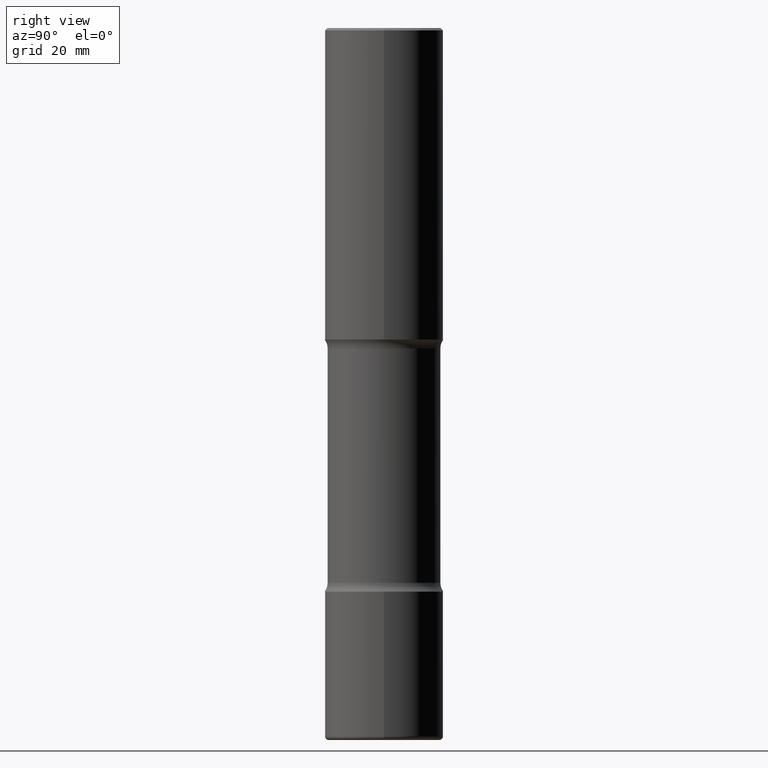
[diagram: clean part render]
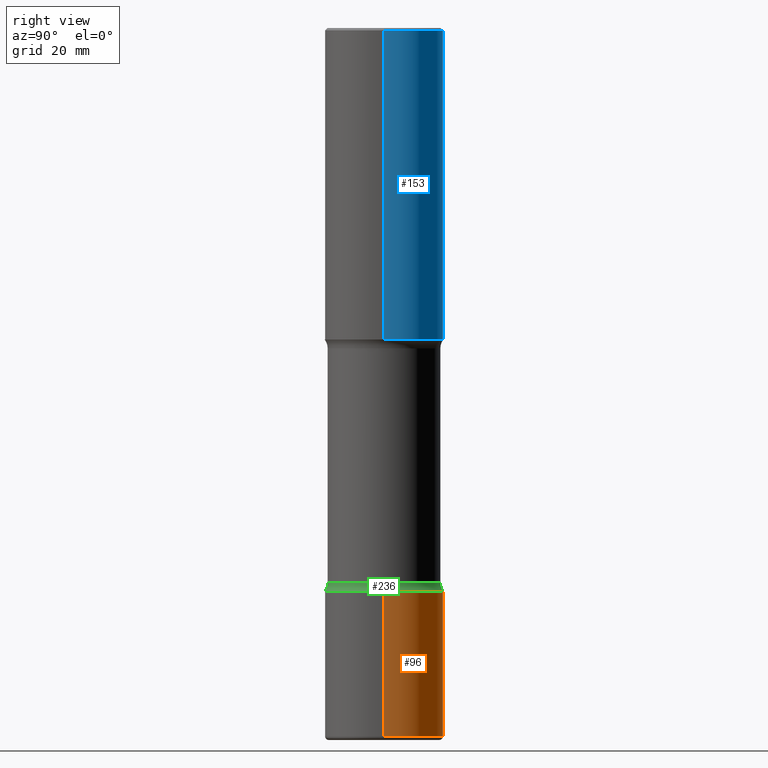
[diagram: same view with three faces highlighted in distinct colors, each labeled with its STEP entity id]
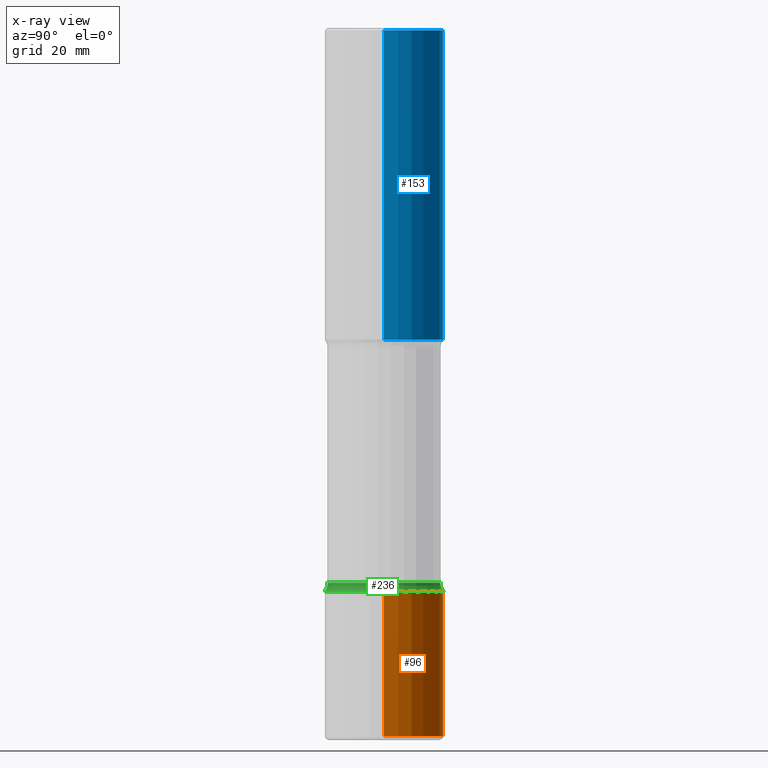
[diagram: x-ray of the same camera — body ghosted, the three highlighted faces saturated]
A machine part, right view with three faces highlighted in distinct colors.
The next image is the same camera in x-ray (body ghosted, the three faces saturated) — at least one of them is partly hidden behind the body in this view.
Their STEP definitions:

[orange] entity #96 — the highlighted cylindrical surface (partial cylindrical patch) has radius 12.7 mm, axis along (-0, 0, 1).
#14 = VERTEX_POINT ( 'NONE', #60 ) ;
#19 = EDGE_LOOP ( 'NONE', ( #72, #482, #411, #328 ) ) ;
#27 = CARTESIAN_POINT ( 'NONE',  ( 0.5000000000000002220, -2.007601769834807990E-14, -4.750000000000000888 ) ) ;
#60 = CARTESIAN_POINT ( 'NONE',  ( 0.5000000000000001110, -2.433562493173671900E-14, -5.970000000000000639 ) ) ;
#72 = ORIENTED_EDGE ( 'NONE', *, *, #311, .T. ) ;
#79 = VECTOR ( 'NONE', #301, 39.37007874015748143 ) ;
#80 = CARTESIAN_POINT ( 'NONE',  ( -0.5000000000000004441, 3.552713678800504085E-15, -2.459467545127455133E-29 ) ) ;
#95 = DIRECTION ( 'NONE',  ( 1.000000000000000000, -6.982962677686270655E-15, 0.000000000000000000 ) ) ;
#96 = ADVANCED_FACE ( 'NONE', ( #198 ), #229, .T. ) ;
#111 = VERTEX_POINT ( 'NONE', #27 ) ;
#116 = EDGE_CURVE ( 'NONE', #147, #441, #497, .T. ) ;
#135 = DIRECTION ( 'NONE',  ( -2.445468806185136597E-29, 3.491481338843145583E-15, 1.000000000000000000 ) ) ;
#147 = VERTEX_POINT ( 'NONE', #536 ) ;
#155 = CARTESIAN_POINT ( 'NONE',  ( -0.5000000000000002220, -1.516162629739875886E-14, -4.750000000000000888 ) ) ;
#178 = DIRECTION ( 'NONE',  ( 1.000000000000000000, -6.982962677686266711E-15, 4.876176775795935232E-29 ) ) ;
#198 = FACE_OUTER_BOUND ( 'NONE', #19, .T. ) ;
#217 = CARTESIAN_POINT ( 'NONE',  ( 0.000000000000000000, 0.000000000000000000, 0.000000000000000000 ) ) ;
#223 = CARTESIAN_POINT ( 'NONE',  ( 1.161597682937940108E-28, -1.658453635950494339E-14, -4.750000000000000888 ) ) ;
#227 = DIRECTION ( 'NONE',  ( -2.445468806185136597E-29, 3.491481338843145583E-15, 1.000000000000000000 ) ) ;
#229 = CYLINDRICAL_SURFACE ( 'NONE', #405, 0.5000000000000004441 ) ;
#244 = EDGE_CURVE ( 'NONE', #14, #111, #384, .T. ) ;
#301 = DIRECTION ( 'NONE',  ( -2.445468806185136877E-29, 3.491481338843145188E-15, 1.000000000000000000 ) ) ;
#309 = CARTESIAN_POINT ( 'NONE',  ( 1.459944877292526719E-28, -2.084414359289358249E-14, -5.970000000000000639 ) ) ;
#311 = EDGE_CURVE ( 'NONE', #14, #147, #500, .T. ) ;
#328 = ORIENTED_EDGE ( 'NONE', *, *, #244, .F. ) ;
#332 = AXIS2_PLACEMENT_3D ( 'NONE', #309, #227, #95 ) ;
#346 = DIRECTION ( 'NONE',  ( 1.000000000000000000, -6.982962677686267499E-15, 0.000000000000000000 ) ) ;
#347 = CIRCLE ( 'NONE', #449, 0.5000000000000002220 ) ;
#350 = DIRECTION ( 'NONE',  ( -2.445468806185136877E-29, 3.491481338843145188E-15, 1.000000000000000000 ) ) ;
#351 = EDGE_CURVE ( 'NONE', #111, #441, #347, .T. ) ;
#384 = LINE ( 'NONE', #385, #511 ) ;
#385 = CARTESIAN_POINT ( 'NONE',  ( 0.5000000000000004441, -3.491481338843136511E-15, 2.438088387897969858E-29 ) ) ;
#405 = AXIS2_PLACEMENT_3D ( 'NONE', #217, #460, #178 ) ;
#411 = ORIENTED_EDGE ( 'NONE', *, *, #351, .F. ) ;
#441 = VERTEX_POINT ( 'NONE', #155 ) ;
#449 = AXIS2_PLACEMENT_3D ( 'NONE', #223, #135, #346 ) ;
#460 = DIRECTION ( 'NONE',  ( -2.445468806185136597E-29, 3.491481338843145583E-15, 1.000000000000000000 ) ) ;
#482 = ORIENTED_EDGE ( 'NONE', *, *, #116, .T. ) ;
#497 = LINE ( 'NONE', #80, #79 ) ;
#500 = CIRCLE ( 'NONE', #332, 0.5000000000000005551 ) ;
#511 = VECTOR ( 'NONE', #350, 39.37007874015748143 ) ;
#536 = CARTESIAN_POINT ( 'NONE',  ( -0.5000000000000001110, -1.729142991409308156E-14, -5.970000000000000639 ) ) ;

[blue] entity #153 — the highlighted cylindrical surface (partial cylindrical patch) has radius 12.7 mm, axis along (-0, 0, 1).
#20 = DIRECTION ( 'NONE',  ( -2.445468806185136877E-29, 3.491481338843145188E-15, 1.000000000000000000 ) ) ;
#48 = CIRCLE ( 'NONE', #322, 0.5000000000000004441 ) ;
#81 = CIRCLE ( 'NONE', #406, 0.5000000000000000000 ) ;
#99 = EDGE_LOOP ( 'NONE', ( #107, #169, #358, #334 ) ) ;
#105 = CARTESIAN_POINT ( 'NONE',  ( -0.5000000000000000000, 3.421651712066270057E-15, -0.02000000000000010103 ) ) ;
#107 = ORIENTED_EDGE ( 'NONE', *, *, #549, .T. ) ;
#137 = CARTESIAN_POINT ( 'NONE',  ( 0.5000000000000004441, -1.265661985330638997E-14, -2.624999999999999556 ) ) ;
#153 = ADVANCED_FACE ( 'NONE', ( #186 ), #349, .T. ) ;
#158 = VERTEX_POINT ( 'NONE', #137 ) ;
#165 = CARTESIAN_POINT ( 'NONE',  ( 4.890937612370298557E-31, -6.982962677686327354E-17, -0.02000000000000010103 ) ) ;
#169 = ORIENTED_EDGE ( 'NONE', *, *, #370, .T. ) ;
#173 = DIRECTION ( 'NONE',  ( 1.000000000000000000, -6.982962677686264344E-15, 0.000000000000000000 ) ) ;
#174 = DIRECTION ( 'NONE',  ( -2.445468806185136597E-29, 3.491481338843145583E-15, 1.000000000000000000 ) ) ;
#182 = DIRECTION ( 'NONE',  ( -2.445468806185136597E-29, 3.491481338843145583E-15, 1.000000000000000000 ) ) ;
#186 = FACE_OUTER_BOUND ( 'NONE', #99, .T. ) ;
#189 = CARTESIAN_POINT ( 'NONE',  ( 0.5000000000000002220, -3.491481338843134933E-15, 2.438088387897969017E-29 ) ) ;
#240 = VERTEX_POINT ( 'NONE', #513 ) ;
#257 = VECTOR ( 'NONE', #274, 39.37007874015748143 ) ;
#270 = LINE ( 'NONE', #327, #257 ) ;
#274 = DIRECTION ( 'NONE',  ( -2.445468806185136877E-29, 3.491481338843145188E-15, 1.000000000000000000 ) ) ;
#277 = VERTEX_POINT ( 'NONE', #467 ) ;
#322 = AXIS2_PLACEMENT_3D ( 'NONE', #373, #174, #173 ) ;
#325 = CARTESIAN_POINT ( 'NONE',  ( 0.000000000000000000, 0.000000000000000000, 0.000000000000000000 ) ) ;
#327 = CARTESIAN_POINT ( 'NONE',  ( -0.5000000000000002220, 3.552713678800502507E-15, -2.459467545127454012E-29 ) ) ;
#334 = ORIENTED_EDGE ( 'NONE', *, *, #413, .F. ) ;
#338 = VECTOR ( 'NONE', #20, 39.37007874015748143 ) ;
#344 = DIRECTION ( 'NONE',  ( 1.000000000000000000, -6.982962677686266711E-15, 4.876176775795935793E-29 ) ) ;
#349 = CYLINDRICAL_SURFACE ( 'NONE', #457, 0.5000000000000002220 ) ;
#358 = ORIENTED_EDGE ( 'NONE', *, *, #398, .F. ) ;
#370 = EDGE_CURVE ( 'NONE', #277, #403, #270, .T. ) ;
#373 = CARTESIAN_POINT ( 'NONE',  ( 6.419355616235982445E-29, -9.165138514463255034E-15, -2.624999999999999556 ) ) ;
#398 = EDGE_CURVE ( 'NONE', #240, #403, #81, .T. ) ;
#403 = VERTEX_POINT ( 'NONE', #105 ) ;
#404 = LINE ( 'NONE', #189, #338 ) ;
#406 = AXIS2_PLACEMENT_3D ( 'NONE', #165, #518, #485 ) ;
#413 = EDGE_CURVE ( 'NONE', #158, #240, #404, .T. ) ;
#457 = AXIS2_PLACEMENT_3D ( 'NONE', #325, #182, #344 ) ;
#467 = CARTESIAN_POINT ( 'NONE',  ( -0.5000000000000004441, -1.064770391819553504E-15, -2.624999999999999556 ) ) ;
#485 = DIRECTION ( 'NONE',  ( 1.000000000000000000, -6.982962677686266711E-15, 0.000000000000000000 ) ) ;
#513 = CARTESIAN_POINT ( 'NONE',  ( 0.5000000000000000000, -3.500078625662629079E-15, -0.02000000000000010103 ) ) ;
#518 = DIRECTION ( 'NONE',  ( -2.445468806185136597E-29, 3.491481338843145583E-15, 1.000000000000000000 ) ) ;
#549 = EDGE_CURVE ( 'NONE', #158, #277, #48, .T. ) ;

[green] entity #236 — the highlighted toroidal blend (fillet) surface has major radius 15.24 mm and minor (blend) radius 3.175 mm.
#54 = DIRECTION ( 'NONE',  ( 2.523594115079346016E-29, -3.379601449890201278E-15, -1.000000000000000000 ) ) ;
#63 = CARTESIAN_POINT ( 'NONE',  ( 3.316907271901089495E-15, 0.4749999999999836020, -4.675000000000001599 ) ) ;
#66 = CARTESIAN_POINT ( 'NONE',  ( 3.491481338843251684E-15, 0.4999999999999837352, -4.750000000000002665 ) ) ;
#89 = CARTESIAN_POINT ( 'NONE',  ( 1.143256666891551449E-28, -1.632267525909170681E-14, -4.674999999999999822 ) ) ;
#102 = CARTESIAN_POINT ( 'NONE',  ( 1.161597682937940108E-28, -1.658453635950494339E-14, -4.750000000000000888 ) ) ;
#136 = AXIS2_PLACEMENT_3D ( 'NONE', #247, #394, #283 ) ;
#138 = DIRECTION ( 'NONE',  ( 2.523594115079346016E-29, -3.379601449890201278E-15, -1.000000000000000000 ) ) ;
#145 = AXIS2_PLACEMENT_3D ( 'NONE', #432, #233, #396 ) ;
#184 = CARTESIAN_POINT ( 'NONE',  ( -3.344492773913506542E-15, -0.4750000000000162426, -4.674999999999998934 ) ) ;
#185 = CIRCLE ( 'NONE', #145, 0.1250000000000000278 ) ;
#187 = FACE_OUTER_BOUND ( 'NONE', #192, .T. ) ;
#192 = EDGE_LOOP ( 'NONE', ( #435, #208, #206, #246 ) ) ;
#194 = EDGE_CURVE ( 'NONE', #372, #320, #438, .T. ) ;
#202 = AXIS2_PLACEMENT_3D ( 'NONE', #102, #54, #400 ) ;
#206 = ORIENTED_EDGE ( 'NONE', *, *, #393, .T. ) ;
#208 = ORIENTED_EDGE ( 'NONE', *, *, #425, .F. ) ;
#233 = DIRECTION ( 'NONE',  ( -1.000000000000000000, 6.982962677686265922E-15, -4.883557194083112340E-29 ) ) ;
#236 = ADVANCED_FACE ( 'NONE', ( #187 ), #237, .F. ) ;
#237 = TOROIDAL_SURFACE ( 'NONE', #382, 0.5999999999999998668, 0.1250000000000000278 ) ;
#246 = ORIENTED_EDGE ( 'NONE', *, *, #504, .T. ) ;
#247 = CARTESIAN_POINT ( 'NONE',  ( 1.142670727074844742E-28, -1.633106625076317916E-14, -4.674999999999999822 ) ) ;
#264 = DIRECTION ( 'NONE',  ( 6.860497997771532351E-15, 1.000000000000000000, 0.000000000000000000 ) ) ;
#271 = DIRECTION ( 'NONE',  ( 6.982962677686265133E-15, 1.000000000000000000, -3.379601449890201672E-15 ) ) ;
#283 = DIRECTION ( 'NONE',  ( 6.982962677686265133E-15, 1.000000000000000000, -3.450755360418017133E-15 ) ) ;
#320 = VERTEX_POINT ( 'NONE', #184 ) ;
#372 = VERTEX_POINT ( 'NONE', #478 ) ;
#382 = AXIS2_PLACEMENT_3D ( 'NONE', #89, #138, #271 ) ;
#393 = EDGE_CURVE ( 'NONE', #491, #410, #185, .T. ) ;
#394 = DIRECTION ( 'NONE',  ( 2.523594115079346016E-29, -3.379601449890201278E-15, -1.000000000000000000 ) ) ;
#396 = DIRECTION ( 'NONE',  ( -6.982962677686265133E-15, -1.000000000000000000, 0.000000000000000000 ) ) ;
#400 = DIRECTION ( 'NONE',  ( 6.982962677686266711E-15, 1.000000000000000000, -3.278217592397114284E-15 ) ) ;
#410 = VERTEX_POINT ( 'NONE', #63 ) ;
#424 = CIRCLE ( 'NONE', #136, 0.4749999999999999223 ) ;
#425 = EDGE_CURVE ( 'NONE', #491, #372, #439, .T. ) ;
#432 = CARTESIAN_POINT ( 'NONE',  ( 4.189777606611873622E-15, 0.5999999999999835465, -4.675000000000002487 ) ) ;
#435 = ORIENTED_EDGE ( 'NONE', *, *, #194, .F. ) ;
#438 = CIRCLE ( 'NONE', #550, 0.1250000000000000278 ) ;
#439 = CIRCLE ( 'NONE', #202, 0.5000000000000002220 ) ;
#468 = DIRECTION ( 'NONE',  ( 1.000000000000000000, -6.860497997771530774E-15, 4.842169013103094469E-29 ) ) ;
#469 = CARTESIAN_POINT ( 'NONE',  ( -4.116298798662803133E-15, -0.6000000000000161871, -4.674999999999998046 ) ) ;
#478 = CARTESIAN_POINT ( 'NONE',  ( -3.430248998885651396E-15, -0.5000000000000169864, -4.749999999999999112 ) ) ;
#491 = VERTEX_POINT ( 'NONE', #66 ) ;
#504 = EDGE_CURVE ( 'NONE', #410, #320, #424, .T. ) ;
#550 = AXIS2_PLACEMENT_3D ( 'NONE', #469, #468, #264 ) ;